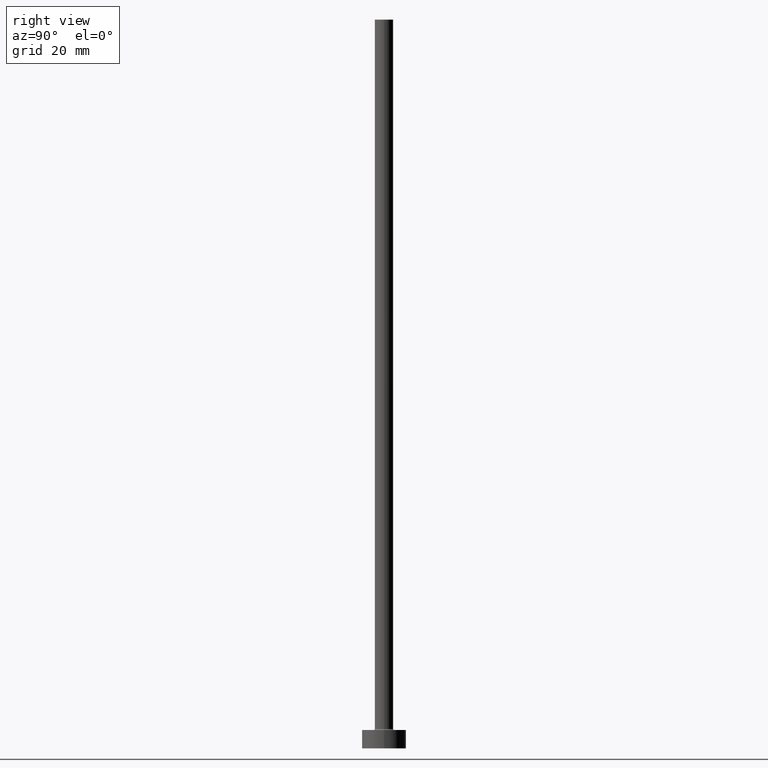
[diagram: clean part render]
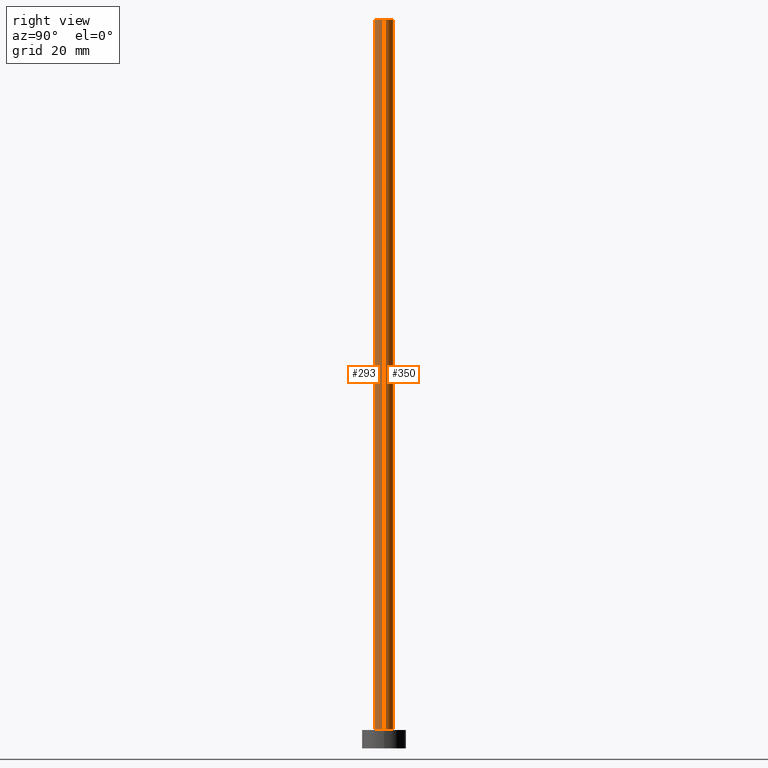
[diagram: same view with one multi-face feature highlighted, each face labeled with its STEP entity id]
A machine part, right view. The highlighted faces form ONE feature: a constant-radius fillet chain: 2 tangent blend faces with common blend radius 2.5 mm. The faces share edges in the B-rep.
Their STEP definitions:
[1] entity #293 (Cylinder):
#14 = VERTEX_POINT ( 'NONE', #238 ) ;
#19 = FACE_OUTER_BOUND ( 'NONE', #257, .T. ) ;
#33 = CARTESIAN_POINT ( 'NONE',  ( -2.500000000000000000, 0.000000000000000000, 198.0000000000000000 ) ) ;
#56 = CARTESIAN_POINT ( 'NONE',  ( 0.000000000000000000, 0.000000000000000000, 198.0000000000000000 ) ) ;
#62 = VERTEX_POINT ( 'NONE', #234 ) ;
#72 = VECTOR ( 'NONE', #336, 1000.000000000000000 ) ;
#81 = CIRCLE ( 'NONE', #121, 2.500000000000000000 ) ;
#84 = CARTESIAN_POINT ( 'NONE',  ( 0.000000000000000000, 0.000000000000000000, 5.299999999999998934 ) ) ;
#94 = CARTESIAN_POINT ( 'NONE',  ( -2.500000000000000000, 0.000000000000000000, 5.299999999999998934 ) ) ;
#101 = DIRECTION ( 'NONE',  ( 1.000000000000000000, 0.000000000000000000, 0.000000000000000000 ) ) ;
#105 = VECTOR ( 'NONE', #309, 1000.000000000000000 ) ;
#121 = AXIS2_PLACEMENT_3D ( 'NONE', #84, #219, #185 ) ;
#155 = DIRECTION ( 'NONE',  ( -0.000000000000000000, -0.000000000000000000, -1.000000000000000000 ) ) ;
#156 = VERTEX_POINT ( 'NONE', #397 ) ;
#185 = DIRECTION ( 'NONE',  ( 1.000000000000000000, 0.000000000000000000, 0.000000000000000000 ) ) ;
#200 = CARTESIAN_POINT ( 'NONE',  ( 0.000000000000000000, 0.000000000000000000, 198.0000000000000000 ) ) ;
#209 = ORIENTED_EDGE ( 'NONE', *, *, #431, .F. ) ;
#219 = DIRECTION ( 'NONE',  ( 0.000000000000000000, 0.000000000000000000, 1.000000000000000000 ) ) ;
#226 = CARTESIAN_POINT ( 'NONE',  ( 2.500000000000000000, 3.061616997868383141E-16, 198.0000000000000000 ) ) ;
#234 = CARTESIAN_POINT ( 'NONE',  ( 2.500000000000000000, 3.061616997868383141E-16, 5.299999999999998934 ) ) ;
#238 = CARTESIAN_POINT ( 'NONE',  ( -2.500000000000000000, 0.000000000000000000, 198.0000000000000000 ) ) ;
#254 = EDGE_CURVE ( 'NONE', #156, #62, #296, .T. ) ;
#257 = EDGE_LOOP ( 'NONE', ( #272, #209, #303, #400 ) ) ;
#263 = CYLINDRICAL_SURFACE ( 'NONE', #383, 2.500000000000000000 ) ;
#266 = CIRCLE ( 'NONE', #374, 2.500000000000000000 ) ;
#272 = ORIENTED_EDGE ( 'NONE', *, *, #254, .F. ) ;
#293 = ADVANCED_FACE ( 'NONE', ( #19 ), #263, .T. ) ;
#296 = LINE ( 'NONE', #226, #72 ) ;
#303 = ORIENTED_EDGE ( 'NONE', *, *, #398, .T. ) ;
#309 = DIRECTION ( 'NONE',  ( -0.000000000000000000, -0.000000000000000000, -1.000000000000000000 ) ) ;
#313 = EDGE_CURVE ( 'NONE', #340, #62, #81, .T. ) ;
#336 = DIRECTION ( 'NONE',  ( -0.000000000000000000, -0.000000000000000000, -1.000000000000000000 ) ) ;
#340 = VERTEX_POINT ( 'NONE', #94 ) ;
#374 = AXIS2_PLACEMENT_3D ( 'NONE', #200, #457, #101 ) ;
#383 = AXIS2_PLACEMENT_3D ( 'NONE', #56, #155, #445 ) ;
#397 = CARTESIAN_POINT ( 'NONE',  ( 2.500000000000000000, 3.061616997868383141E-16, 198.0000000000000000 ) ) ;
#398 = EDGE_CURVE ( 'NONE', #14, #340, #448, .T. ) ;
#400 = ORIENTED_EDGE ( 'NONE', *, *, #313, .T. ) ;
#431 = EDGE_CURVE ( 'NONE', #14, #156, #266, .T. ) ;
#445 = DIRECTION ( 'NONE',  ( -1.000000000000000000, 0.000000000000000000, 0.000000000000000000 ) ) ;
#448 = LINE ( 'NONE', #33, #105 ) ;
#457 = DIRECTION ( 'NONE',  ( 0.000000000000000000, 0.000000000000000000, 1.000000000000000000 ) ) ;
[2] entity #350 (Cylinder):
#9 = ORIENTED_EDGE ( 'NONE', *, *, #254, .T. ) ;
#14 = VERTEX_POINT ( 'NONE', #238 ) ;
#33 = CARTESIAN_POINT ( 'NONE',  ( -2.500000000000000000, 0.000000000000000000, 198.0000000000000000 ) ) ;
#43 = ORIENTED_EDGE ( 'NONE', *, *, #328, .T. ) ;
#62 = VERTEX_POINT ( 'NONE', #234 ) ;
#72 = VECTOR ( 'NONE', #336, 1000.000000000000000 ) ;
#82 = CARTESIAN_POINT ( 'NONE',  ( 0.000000000000000000, 0.000000000000000000, 5.299999999999998934 ) ) ;
#94 = CARTESIAN_POINT ( 'NONE',  ( -2.500000000000000000, 0.000000000000000000, 5.299999999999998934 ) ) ;
#105 = VECTOR ( 'NONE', #309, 1000.000000000000000 ) ;
#124 = ORIENTED_EDGE ( 'NONE', *, *, #355, .F. ) ;
#132 = EDGE_LOOP ( 'NONE', ( #124, #9, #43, #439 ) ) ;
#136 = CIRCLE ( 'NONE', #317, 2.500000000000000000 ) ;
#156 = VERTEX_POINT ( 'NONE', #397 ) ;
#161 = DIRECTION ( 'NONE',  ( 0.000000000000000000, 0.000000000000000000, 1.000000000000000000 ) ) ;
#194 = DIRECTION ( 'NONE',  ( -1.000000000000000000, 0.000000000000000000, 0.000000000000000000 ) ) ;
#215 = AXIS2_PLACEMENT_3D ( 'NONE', #375, #161, #301 ) ;
#226 = CARTESIAN_POINT ( 'NONE',  ( 2.500000000000000000, 3.061616997868383141E-16, 198.0000000000000000 ) ) ;
#234 = CARTESIAN_POINT ( 'NONE',  ( 2.500000000000000000, 3.061616997868383141E-16, 5.299999999999998934 ) ) ;
#238 = CARTESIAN_POINT ( 'NONE',  ( -2.500000000000000000, 0.000000000000000000, 198.0000000000000000 ) ) ;
#254 = EDGE_CURVE ( 'NONE', #156, #62, #296, .T. ) ;
#268 = DIRECTION ( 'NONE',  ( -0.000000000000000000, -0.000000000000000000, -1.000000000000000000 ) ) ;
#295 = FACE_OUTER_BOUND ( 'NONE', #132, .T. ) ;
#296 = LINE ( 'NONE', #226, #72 ) ;
#298 = CYLINDRICAL_SURFACE ( 'NONE', #344, 2.500000000000000000 ) ;
#301 = DIRECTION ( 'NONE',  ( 1.000000000000000000, 0.000000000000000000, 0.000000000000000000 ) ) ;
#309 = DIRECTION ( 'NONE',  ( -0.000000000000000000, -0.000000000000000000, -1.000000000000000000 ) ) ;
#317 = AXIS2_PLACEMENT_3D ( 'NONE', #82, #413, #334 ) ;
#328 = EDGE_CURVE ( 'NONE', #62, #340, #136, .T. ) ;
#334 = DIRECTION ( 'NONE',  ( 1.000000000000000000, 0.000000000000000000, 0.000000000000000000 ) ) ;
#336 = DIRECTION ( 'NONE',  ( -0.000000000000000000, -0.000000000000000000, -1.000000000000000000 ) ) ;
#340 = VERTEX_POINT ( 'NONE', #94 ) ;
#344 = AXIS2_PLACEMENT_3D ( 'NONE', #408, #268, #194 ) ;
#350 = ADVANCED_FACE ( 'NONE', ( #295 ), #298, .T. ) ;
#355 = EDGE_CURVE ( 'NONE', #156, #14, #438, .T. ) ;
#375 = CARTESIAN_POINT ( 'NONE',  ( 0.000000000000000000, 0.000000000000000000, 198.0000000000000000 ) ) ;
#397 = CARTESIAN_POINT ( 'NONE',  ( 2.500000000000000000, 3.061616997868383141E-16, 198.0000000000000000 ) ) ;
#398 = EDGE_CURVE ( 'NONE', #14, #340, #448, .T. ) ;
#408 = CARTESIAN_POINT ( 'NONE',  ( 0.000000000000000000, 0.000000000000000000, 198.0000000000000000 ) ) ;
#413 = DIRECTION ( 'NONE',  ( 0.000000000000000000, 0.000000000000000000, 1.000000000000000000 ) ) ;
#438 = CIRCLE ( 'NONE', #215, 2.500000000000000000 ) ;
#439 = ORIENTED_EDGE ( 'NONE', *, *, #398, .F. ) ;
#448 = LINE ( 'NONE', #33, #105 ) ;